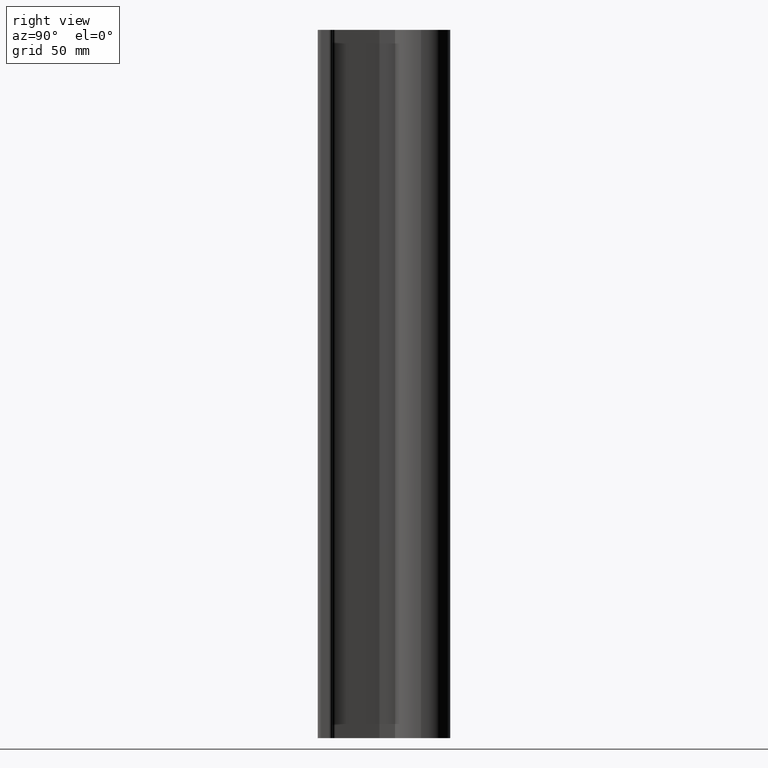
[diagram: clean part render]
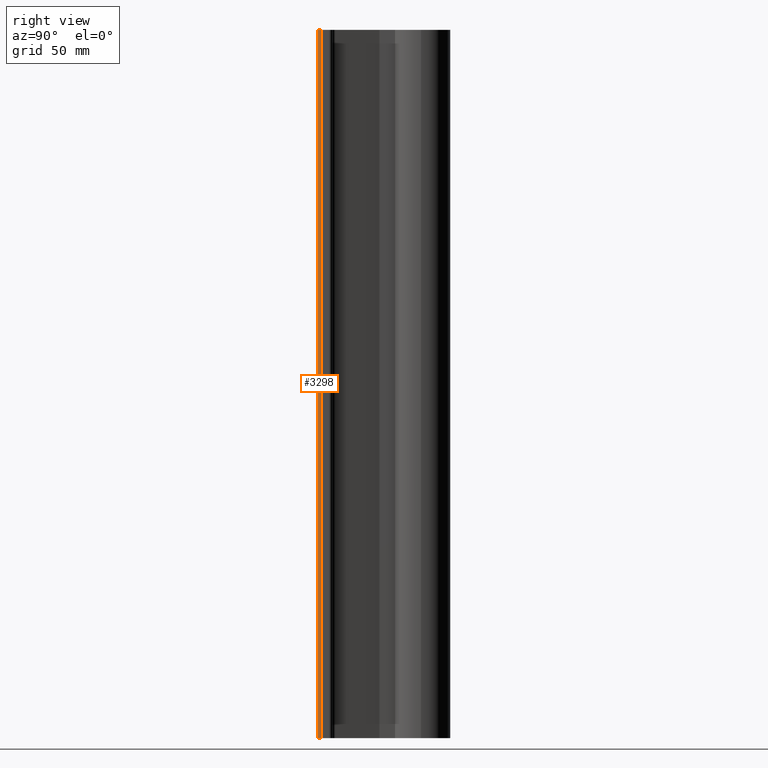
[diagram: same view with one face highlighted and labeled with its STEP entity id]
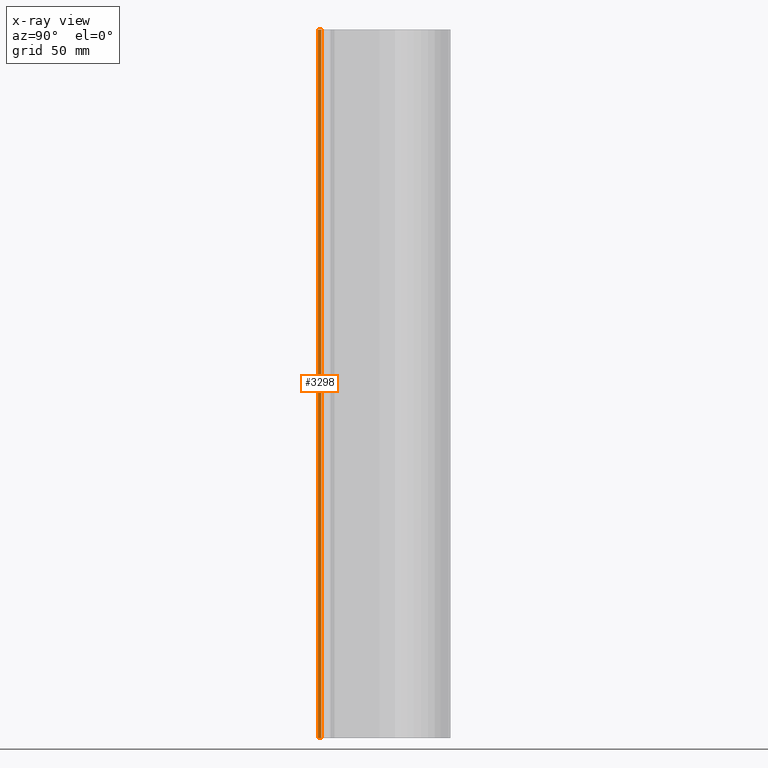
[diagram: x-ray of the same camera — body ghosted, the highlighted face saturated]
A machine part, right view. The second image highlights one B-rep face of the part: STEP entity #3298.
The next image is the same camera in x-ray: the body ghosted, the highlighted face saturated — about 0% of this face is hidden behind the body in this view.
In plain terms, the highlighted cylindrical surface (edge-blend (fillet) strip) has radius 1.524 mm, axis along (0, 0, 1).
Its self-contained STEP definition (entity closure, byte-faithful):
#370 = EDGE_CURVE ( 'NONE', #1080, #3290, #3075, .T. ) ;
#379 = EDGE_CURVE ( 'NONE', #2236, #3319, #2993, .T. ) ;
#416 = CIRCLE ( 'NONE', #2677, 0.06000000000000045575 ) ;
#519 = EDGE_LOOP ( 'NONE', ( #3185, #2920, #1926, #2867 ) ) ;
#606 = CARTESIAN_POINT ( 'NONE',  ( 1.023021208602838961, 0.003618442752845325069, -14.49573696227415098 ) ) ;
#646 = DIRECTION ( 'NONE',  ( 1.000000000000000000, 0.000000000000000000, 0.000000000000000000 ) ) ;
#982 = CARTESIAN_POINT ( 'NONE',  ( 1.002500000003299307, 0.06000000000000058759, -14.49573696227415098 ) ) ;
#1008 = CARTESIAN_POINT ( 'NONE',  ( 1.002500000003299307, 0.06000000000000058759, -12.00000000000000178 ) ) ;
#1080 = VERTEX_POINT ( 'NONE', #1471 ) ;
#1219 = DIRECTION ( 'NONE',  ( 0.000000000000000000, 0.000000000000000000, 1.000000000000000000 ) ) ;
#1388 = DIRECTION ( 'NONE',  ( 1.000000000000000000, 0.000000000000000000, 0.000000000000000000 ) ) ;
#1471 = CARTESIAN_POINT ( 'NONE',  ( 1.062500000003299805, 0.06000000000000058759, -12.00000000000000178 ) ) ;
#1702 = VECTOR ( 'NONE', #1219, 39.37007874015748143 ) ;
#1773 = CARTESIAN_POINT ( 'NONE',  ( 1.062500000003299805, 0.06000000000000058759, -14.49573696227415098 ) ) ;
#1926 = ORIENTED_EDGE ( 'NONE', *, *, #1962, .F. ) ;
#1962 = EDGE_CURVE ( 'NONE', #3319, #3290, #3833, .T. ) ;
#2061 = CARTESIAN_POINT ( 'NONE',  ( 1.002500000003299307, 0.06000000000000058759, 0.000000000000000000 ) ) ;
#2236 = VERTEX_POINT ( 'NONE', #3851 ) ;
#2656 = AXIS2_PLACEMENT_3D ( 'NONE', #982, #2865, #646 ) ;
#2677 = AXIS2_PLACEMENT_3D ( 'NONE', #1008, #3529, #1388 ) ;
#2787 = EDGE_CURVE ( 'NONE', #1080, #2236, #416, .T. ) ;
#2865 = DIRECTION ( 'NONE',  ( 0.000000000000000000, 0.000000000000000000, 1.000000000000000000 ) ) ;
#2867 = ORIENTED_EDGE ( 'NONE', *, *, #379, .F. ) ;
#2920 = ORIENTED_EDGE ( 'NONE', *, *, #370, .T. ) ;
#2993 = LINE ( 'NONE', #606, #3131 ) ;
#3013 = DIRECTION ( 'NONE',  ( 0.000000000000000000, 0.000000000000000000, 1.000000000000000000 ) ) ;
#3075 = LINE ( 'NONE', #1773, #1702 ) ;
#3131 = VECTOR ( 'NONE', #3013, 39.37007874015748143 ) ;
#3150 = CYLINDRICAL_SURFACE ( 'NONE', #2656, 0.06000000000000045575 ) ;
#3185 = ORIENTED_EDGE ( 'NONE', *, *, #2787, .F. ) ;
#3290 = VERTEX_POINT ( 'NONE', #3747 ) ;
#3298 = ADVANCED_FACE ( 'NONE', ( #3495 ), #3150, .T. ) ;
#3319 = VERTEX_POINT ( 'NONE', #3463 ) ;
#3327 = DIRECTION ( 'NONE',  ( 0.000000000000000000, 0.000000000000000000, 1.000000000000000000 ) ) ;
#3463 = CARTESIAN_POINT ( 'NONE',  ( 1.023021208602838961, 0.003618442752845333309, 0.000000000000000000 ) ) ;
#3495 = FACE_OUTER_BOUND ( 'NONE', #519, .T. ) ;
#3529 = DIRECTION ( 'NONE',  ( -0.000000000000000000, -0.000000000000000000, -1.000000000000000000 ) ) ;
#3747 = CARTESIAN_POINT ( 'NONE',  ( 1.062500000003299805, 0.06000000000000058759, 0.000000000000000000 ) ) ;
#3771 = AXIS2_PLACEMENT_3D ( 'NONE', #2061, #3327, #3980 ) ;
#3833 = CIRCLE ( 'NONE', #3771, 0.06000000000000045575 ) ;
#3851 = CARTESIAN_POINT ( 'NONE',  ( 1.023021208602838961, 0.003618442752845276930, -12.00000000000000178 ) ) ;
#3980 = DIRECTION ( 'NONE',  ( 1.000000000000000000, 0.000000000000000000, 0.000000000000000000 ) ) ;